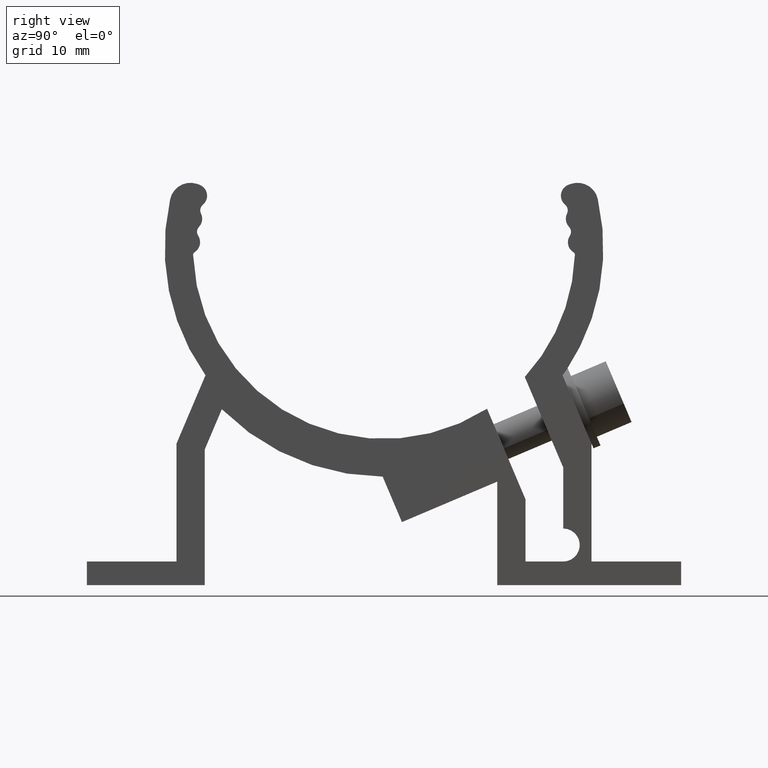
[diagram: clean part render]
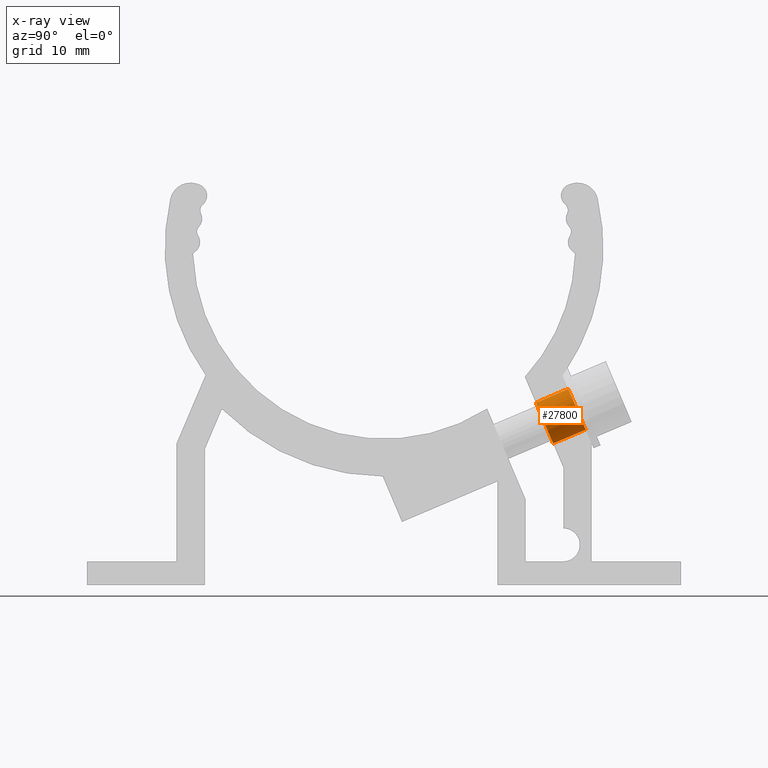
[diagram: x-ray — body ghosted, one internal face saturated and labeled with its STEP entity id]
A machine part, right view, then the same camera in x-ray: the body is ghosted and one INTERNAL B-rep face — a face not visible from any outside direction — is saturated and labeled: STEP entity #27800.
In plain terms, the highlighted cylindrical surface (edge-blend (fillet) strip) has radius 2.35 mm, axis along (0, 0.9205, 0.3907).
Its self-contained STEP definition (entity closure, byte-faithful):
#12840=CARTESIAN_POINT('',(-12.328691230129,-34.8908572471785,
6.57849322925872E-14));
#12850=DIRECTION('',(0.920504853452441,0.390731128489273,0.));
#12860=VECTOR('',#12850,1.);
#12870=LINE('',#12840,#12860);
#12880=CARTESIAN_POINT('',(18.393158253846,-21.8502058338492,
6.57849322925872E-14));
#12890=VERTEX_POINT('',#12880);
#12900=CARTESIAN_POINT('',(21.8450514542926,-20.3849641020144,
6.57849322925872E-14));
#12910=VERTEX_POINT('',#12900);
#12920=EDGE_CURVE('',#12890,#12910,#12870,.T.);
#12940=CARTESIAN_POINT('',(17.4749401018962,-19.6870194282359,
6.54971402947876E-14));
#12950=DIRECTION('',(0.920504853452441,0.390731128489273,
-6.16297582203916E-33));
#12960=DIRECTION('',(0.390731128489273,-0.920504853452441,
9.70479842645403E-17));
#12970=AXIS2_PLACEMENT_3D('',#12940,#12950,#12960);
#12980=CIRCLE('',#12970,2.35);
#12990=CARTESIAN_POINT('',(16.5567219499464,-17.5238330226227,
6.54971402947876E-14));
#13000=VERTEX_POINT('',#12990);
#13030=CARTESIAN_POINT('',(-14.1651275340286,-30.5644844359521,
6.54971402947876E-14));
#13040=DIRECTION('',(0.920504853452441,0.390731128489273,0.));
#13050=VECTOR('',#13040,1.);
#13060=LINE('',#13030,#13050);
#13070=CARTESIAN_POINT('',(20.008615150393,-16.0585912907879,
6.54971402947876E-14));
#13080=VERTEX_POINT('',#13070);
#13090=EDGE_CURVE('',#13000,#13080,#13060,.T.);
#13110=CARTESIAN_POINT('',(20.9268333023428,-18.2217776964011,
6.54971402947876E-14));
#13120=DIRECTION('',(0.920504853452441,0.390731128489273,0.));
#13130=DIRECTION('',(-0.390731128489273,0.920504853452441,0.));
#13140=AXIS2_PLACEMENT_3D('',#13110,#13120,#13130);
#13150=CIRCLE('',#13140,2.35);
#14220=EDGE_CURVE('',#13000,#12890,#12980,.T.);
#18660=EDGE_CURVE('',#13080,#12910,#13150,.T.);
#27690=CARTESIAN_POINT('',(-13.2469093820788,-32.7276708415653,
6.54971402947876E-14));
#27700=DIRECTION('',(0.920504853452441,0.390731128489273,0.));
#27710=DIRECTION('',(-0.390731128489273,0.920504853452441,0.));
#27720=AXIS2_PLACEMENT_3D('',#27690,#27700,#27710);
#27730=CYLINDRICAL_SURFACE('',#27720,2.35);
#27740=ORIENTED_EDGE('',*,*,#12920,.F.);
#27750=ORIENTED_EDGE('',*,*,#18660,.T.);
#27760=ORIENTED_EDGE('',*,*,#13090,.T.);
#27770=ORIENTED_EDGE('',*,*,#14220,.F.);
#27780=EDGE_LOOP('',(#27770,#27760,#27750,#27740));
#27790=FACE_OUTER_BOUND('',#27780,.T.);
#27800=ADVANCED_FACE('',(#27790),#27730,.F.);